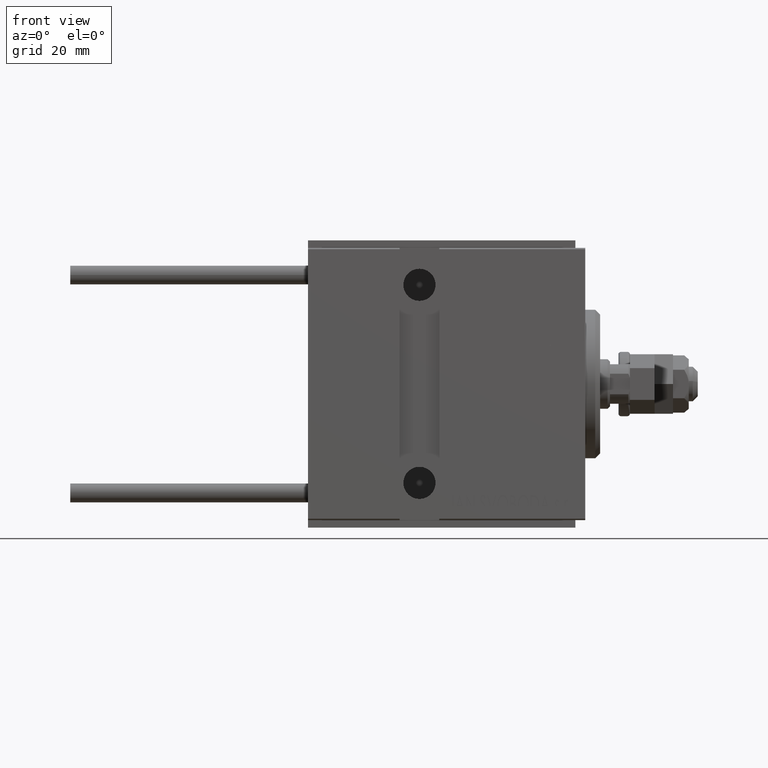
[diagram: clean part render]
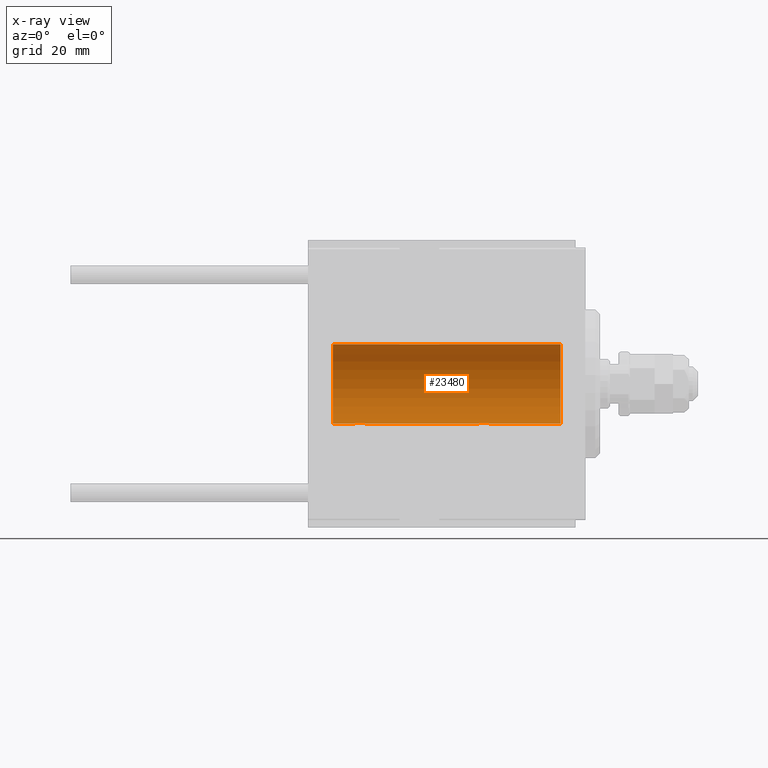
[diagram: x-ray — body ghosted, one internal face saturated and labeled with its STEP entity id]
A machine part, front view, then the same camera in x-ray: the body is ghosted and one INTERNAL B-rep face — a face not visible from any outside direction — is saturated and labeled: STEP entity #23480.
In plain terms, the highlighted cylindrical surface (partial cylindrical patch) has radius 8 mm, axis along (1, 0, -0).
Its self-contained STEP definition (entity closure, byte-faithful):
#144 = ORIENTED_EDGE ( 'NONE', *, *, #25108, .F. ) ;
#524 = CYLINDRICAL_SURFACE ( 'NONE', #17323, 7.999999999999998224 ) ;
#585 = CARTESIAN_POINT ( 'NONE',  ( 44.73184514123551025, -0.9994562523959173994, -7.938165420771276182 ) ) ;
#748 = AXIS2_PLACEMENT_3D ( 'NONE', #34601, #45692, #3011 ) ;
#1322 = EDGE_CURVE ( 'NONE', #15059, #41786, #21361, .T. ) ;
#1487 = VERTEX_POINT ( 'NONE', #15292 ) ;
#1959 = EDGE_CURVE ( 'NONE', #41786, #14673, #36965, .T. ) ;
#2442 = ORIENTED_EDGE ( 'NONE', *, *, #5137, .T. ) ;
#2558 = EDGE_LOOP ( 'NONE', ( #27731, #2442, #17320, #43856, #38182, #36290, #18723, #144 ) ) ;
#3011 = DIRECTION ( 'NONE',  ( 0.000000000000000000, 0.000000000000000000, 1.000000000000000000 ) ) ;
#3261 = CARTESIAN_POINT ( 'NONE',  ( 21.75000000000000355, -0.1632520343443075173, -8.000000000000000000 ) ) ;
#3625 = CARTESIAN_POINT ( 'NONE',  ( 44.25000000000000711, -6.574401834785964054E-15, -7.999999999999998224 ) ) ;
#4121 = CARTESIAN_POINT ( 'NONE',  ( 44.87056207267772123, -1.092287957405122523, -7.925333492638530153 ) ) ;
#5137 = EDGE_CURVE ( 'NONE', #48772, #29224, #14166, .T. ) ;
#5721 = EDGE_CURVE ( 'NONE', #13201, #47975, #6649, .T. ) ;
#6007 = DIRECTION ( 'NONE',  ( 0.000000000000000000, 0.000000000000000000, 1.000000000000000000 ) ) ;
#6172 = CARTESIAN_POINT ( 'NONE',  ( 45.66599605016011054, -1.249894643705222519, -7.901756981264366431 ) ) ;
#6649 = LINE ( 'NONE', #37493, #16156 ) ;
#6924 = CARTESIAN_POINT ( 'NONE',  ( 46.59250917855268881, -0.6288424646912639249, -7.976670562295704592 ) ) ;
#7058 = CARTESIAN_POINT ( 'NONE',  ( 21.59250917855271013, -0.6288424646912643690, -7.976670562295706368 ) ) ;
#11109 = CARTESIAN_POINT ( 'NONE',  ( 19.25000000000000711, -6.253246997522681077E-15, -7.999999999999998224 ) ) ;
#11410 = DIRECTION ( 'NONE',  ( -1.000000000000000000, -0.000000000000000000, -0.000000000000000000 ) ) ;
#11593 = CIRCLE ( 'NONE', #39815, 7.999999999999998224 ) ;
#12207 = CARTESIAN_POINT ( 'NONE',  ( 45.17298283628253586, -1.217515856520243078, -7.907063872927295733 ) ) ;
#13190 = LINE ( 'NONE', #28613, #31138 ) ;
#13201 = VERTEX_POINT ( 'NONE', #26700 ) ;
#13684 = CARTESIAN_POINT ( 'NONE',  ( 46.74999999999999289, 9.797173987957720246E-16, -7.999999999999998224 ) ) ;
#14166 = LINE ( 'NONE', #40953, #22601 ) ;
#14638 = CARTESIAN_POINT ( 'NONE',  ( 21.32687899779142171, -0.9409612394163514582, -7.944680966683015377 ) ) ;
#14673 = VERTEX_POINT ( 'NONE', #41843 ) ;
#14754 = CARTESIAN_POINT ( 'NONE',  ( 46.26267005793690146, -0.9937204387496761937, -7.938174152191988853 ) ) ;
#14887 = CARTESIAN_POINT ( 'NONE',  ( 21.75000000000000355, 9.797173987965608855E-16, -7.999999999999998224 ) ) ;
#15059 = VERTEX_POINT ( 'NONE', #27372 ) ;
#15292 = CARTESIAN_POINT ( 'NONE',  ( 51.00000000000000000, 0.000000000000000000, 7.999999999999998224 ) ) ;
#16156 = VECTOR ( 'NONE', #45304, 1000.000000000000000 ) ;
#16768 = EDGE_CURVE ( 'NONE', #48772, #1487, #11593, .T. ) ;
#17320 = ORIENTED_EDGE ( 'NONE', *, *, #25807, .T. ) ;
#17323 = AXIS2_PLACEMENT_3D ( 'NONE', #42725, #11410, #19711 ) ;
#18165 = CARTESIAN_POINT ( 'NONE',  ( 19.40834966532100481, -0.6303134207468028549, -7.976551562999471656 ) ) ;
#18420 = CARTESIAN_POINT ( 'NONE',  ( 19.50158244334251378, -0.7695044314719124978, -7.963745725343517101 ) ) ;
#18533 = CARTESIAN_POINT ( 'NONE',  ( 46.49958686675911679, -0.7680324342712132601, -7.963892330120035723 ) ) ;
#18663 = CARTESIAN_POINT ( 'NONE',  ( 19.25000000000000355, -0.1654128203352942528, -7.999999999999996447 ) ) ;
#18723 = ORIENTED_EDGE ( 'NONE', *, *, #1959, .T. ) ;
#18782 = CARTESIAN_POINT ( 'NONE',  ( 45.82830666114114138, -1.217212176555601877, -7.907113222863031865 ) ) ;
#18957 = B_SPLINE_CURVE_WITH_KNOTS ( 'NONE', 3,
 ( #40801, #26134, #41543, #6924, #18533, #49359, #14754, #30180, #41796, #18782, #6172, #42540, #12207, #4121, #585, #39234, #22823, #34472, #27383, #3625 ),
 .UNSPECIFIED., .F., .F.,
 ( 4, 2, 2, 2, 2, 2, 2, 2, 2, 4 ),
 ( 0.003914068143704942625, 0.004403205918210043035, 0.004892343692715143445, 0.005136912579967701023, 0.005381481467220257733, 0.005870619241725372889, 0.006359757016230488044, 0.006848894790735601465, 0.007338032565240716620, 0.007827170339745831776 ),
 .UNSPECIFIED. ) ;
#19711 = DIRECTION ( 'NONE',  ( 0.000000000000000000, 0.000000000000000000, 1.000000000000000000 ) ) ;
#20771 = VECTOR ( 'NONE', #37315, 1000.000000000000000 ) ;
#21361 = LINE ( 'NONE', #41346, #20771 ) ;
#21747 = DIRECTION ( 'NONE',  ( -1.000000000000000000, -0.000000000000000000, -0.000000000000000000 ) ) ;
#21949 = CARTESIAN_POINT ( 'NONE',  ( 21.26267005793690856, -0.9937204387496726410, -7.938174152191988853 ) ) ;
#22446 = CARTESIAN_POINT ( 'NONE',  ( 21.49958686675913100, -0.7680324342712168129, -7.963892330120035723 ) ) ;
#22601 = VECTOR ( 'NONE', #40705, 1000.000000000000000 ) ;
#22823 = CARTESIAN_POINT ( 'NONE',  ( 44.40834966532099060, -0.6303134207468009675, -7.976551562999471656 ) ) ;
#23480 = ADVANCED_FACE ( 'NONE', ( #34415 ), #524, .F. ) ;
#24972 = CARTESIAN_POINT ( 'NONE',  ( 51.00000000000000000, 0.000000000000000000, 0.000000000000000000 ) ) ;
#25108 = EDGE_CURVE ( 'NONE', #1487, #14673, #13190, .T. ) ;
#25766 = CARTESIAN_POINT ( 'NONE',  ( 21.71715712019487654, -0.3279446529214867234, -7.994696267489720398 ) ) ;
#25807 = EDGE_CURVE ( 'NONE', #29224, #13201, #18957, .T. ) ;
#26024 = CARTESIAN_POINT ( 'NONE',  ( 20.33559448851098850, -1.250104850332080408, -7.901723728054489193 ) ) ;
#26134 = CARTESIAN_POINT ( 'NONE',  ( 46.75000000000000711, -0.1632520343443072675, -8.000000000000000000 ) ) ;
#26700 = CARTESIAN_POINT ( 'NONE',  ( 44.25000000000000711, -6.574401834785964054E-15, -7.999999999999998224 ) ) ;
#27372 = CARTESIAN_POINT ( 'NONE',  ( 19.25000000000000711, -6.253246997522681077E-15, -7.999999999999998224 ) ) ;
#27383 = CARTESIAN_POINT ( 'NONE',  ( 44.25000000000002132, -0.1654128203352940030, -7.999999999999992895 ) ) ;
#27731 = ORIENTED_EDGE ( 'NONE', *, *, #16768, .F. ) ;
#28613 = CARTESIAN_POINT ( 'NONE',  ( 51.00000000000000000, 0.000000000000000000, 7.999999999999998224 ) ) ;
#29224 = VERTEX_POINT ( 'NONE', #13684 ) ;
#30068 = CARTESIAN_POINT ( 'NONE',  ( 19.73184514123549604, -0.9994562523959170663, -7.938165420771272629 ) ) ;
#30180 = CARTESIAN_POINT ( 'NONE',  ( 46.12714162834986098, -1.084361243153323162, -7.926301147147065684 ) ) ;
#30311 = CARTESIAN_POINT ( 'NONE',  ( 20.17298283628254651, -1.217515856520243966, -7.907063872927295733 ) ) ;
#30989 = CARTESIAN_POINT ( 'NONE',  ( 21.75000000000000355, 9.797173987965608855E-16, -7.999999999999998224 ) ) ;
#31138 = VECTOR ( 'NONE', #21747, 1000.000000000000000 ) ;
#34415 = FACE_OUTER_BOUND ( 'NONE', #2558, .T. ) ;
#34472 = CARTESIAN_POINT ( 'NONE',  ( 44.28333392022815218, -0.3297258132310547096, -7.994620111903502746 ) ) ;
#34601 = CARTESIAN_POINT ( 'NONE',  ( 4.999999999999997335, 0.000000000000000000, 0.000000000000000000 ) ) ;
#36281 = CARTESIAN_POINT ( 'NONE',  ( 51.00000000000000000, 9.797174393178823685E-16, -7.999999999999998224 ) ) ;
#36290 = ORIENTED_EDGE ( 'NONE', *, *, #1322, .T. ) ;
#36965 = CIRCLE ( 'NONE', #748, 7.999999999999998224 ) ;
#37315 = DIRECTION ( 'NONE',  ( -1.000000000000000000, -0.000000000000000000, -0.000000000000000000 ) ) ;
#37400 = CARTESIAN_POINT ( 'NONE',  ( 19.87056207267772123, -1.092287957405124077, -7.925333492638530153 ) ) ;
#37493 = CARTESIAN_POINT ( 'NONE',  ( 51.00000000000000000, 9.797174393178823685E-16, -7.999999999999998224 ) ) ;
#37647 = CARTESIAN_POINT ( 'NONE',  ( 20.82830666114115914, -1.217212176555602543, -7.907113222863031865 ) ) ;
#38182 = ORIENTED_EDGE ( 'NONE', *, *, #44746, .T. ) ;
#39234 = CARTESIAN_POINT ( 'NONE',  ( 44.50158244334253510, -0.7695044314719132750, -7.963745725343517101 ) ) ;
#39815 = AXIS2_PLACEMENT_3D ( 'NONE', #24972, #44665, #6007 ) ;
#40592 = B_SPLINE_CURVE_WITH_KNOTS ( 'NONE', 3,
 ( #14887, #3261, #25766, #7058, #22446, #14638, #21949, #41932, #49244, #37647, #48749, #26024, #30311, #37400, #30068, #18420, #18165, #45460, #18663, #11109 ),
 .UNSPECIFIED., .F., .F.,
 ( 4, 2, 2, 2, 2, 2, 2, 2, 2, 4 ),
 ( 0.003914068143704946962, 0.004403205918210064719, 0.004892343692715182477, 0.005136912579967740922, 0.005381481467220300234, 0.005870619241725407583, 0.006359757016230515800, 0.006848894790735624016, 0.007338032565240732233, 0.007827170339745840449 ),
 .UNSPECIFIED. ) ;
#40705 = DIRECTION ( 'NONE',  ( -1.000000000000000000, -0.000000000000000000, -0.000000000000000000 ) ) ;
#40801 = CARTESIAN_POINT ( 'NONE',  ( 46.74999999999999289, 9.797173987957720246E-16, -7.999999999999998224 ) ) ;
#40953 = CARTESIAN_POINT ( 'NONE',  ( 51.00000000000000000, 9.797174393178823685E-16, -7.999999999999998224 ) ) ;
#41346 = CARTESIAN_POINT ( 'NONE',  ( 51.00000000000000000, 9.797174393178823685E-16, -7.999999999999998224 ) ) ;
#41543 = CARTESIAN_POINT ( 'NONE',  ( 46.71715712019487654, -0.3279446529214870565, -7.994696267489720398 ) ) ;
#41786 = VERTEX_POINT ( 'NONE', #43023 ) ;
#41796 = CARTESIAN_POINT ( 'NONE',  ( 46.05544625654725621, -1.122809931695432972, -7.920878051565289901 ) ) ;
#41843 = CARTESIAN_POINT ( 'NONE',  ( 4.999999999999997335, 0.000000000000000000, 7.999999999999998224 ) ) ;
#41932 = CARTESIAN_POINT ( 'NONE',  ( 21.12714162834986098, -1.084361243153320720, -7.926301147147069237 ) ) ;
#42540 = CARTESIAN_POINT ( 'NONE',  ( 45.33559448851099205, -1.250104850332079964, -7.901723728054489193 ) ) ;
#42725 = CARTESIAN_POINT ( 'NONE',  ( 51.00000000000000000, 0.000000000000000000, 0.000000000000000000 ) ) ;
#43023 = CARTESIAN_POINT ( 'NONE',  ( 4.999999999999997335, 9.797174393178823685E-16, -7.999999999999998224 ) ) ;
#43856 = ORIENTED_EDGE ( 'NONE', *, *, #5721, .T. ) ;
#44665 = DIRECTION ( 'NONE',  ( -1.000000000000000000, 0.000000000000000000, 0.000000000000000000 ) ) ;
#44746 = EDGE_CURVE ( 'NONE', #47975, #15059, #40592, .T. ) ;
#45304 = DIRECTION ( 'NONE',  ( -1.000000000000000000, -0.000000000000000000, -0.000000000000000000 ) ) ;
#45460 = CARTESIAN_POINT ( 'NONE',  ( 19.28333392022814152, -0.3297258132310571521, -7.994620111903500970 ) ) ;
#45692 = DIRECTION ( 'NONE',  ( -1.000000000000000000, 0.000000000000000000, 0.000000000000000000 ) ) ;
#47975 = VERTEX_POINT ( 'NONE', #30989 ) ;
#48749 = CARTESIAN_POINT ( 'NONE',  ( 20.66599605016010344, -1.249894643705222963, -7.901756981264366431 ) ) ;
#48772 = VERTEX_POINT ( 'NONE', #36281 ) ;
#49244 = CARTESIAN_POINT ( 'NONE',  ( 21.05544625654725266, -1.122809931695433638, -7.920878051565290789 ) ) ;
#49359 = CARTESIAN_POINT ( 'NONE',  ( 46.32687899779140395, -0.9409612394163480165, -7.944680966683013601 ) ) ;